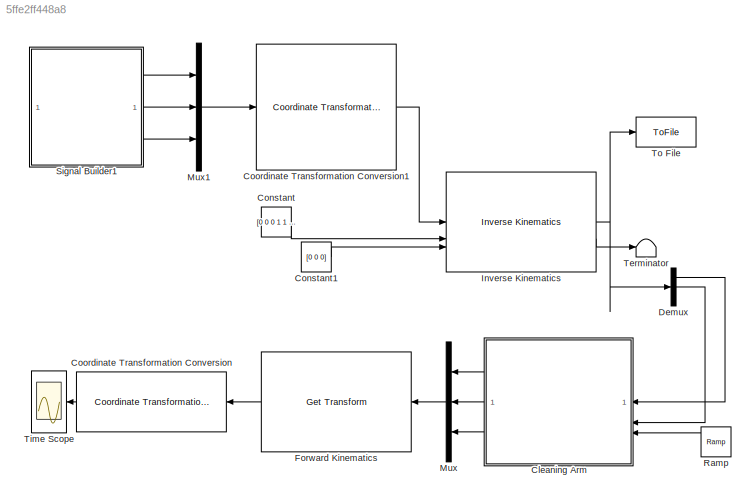
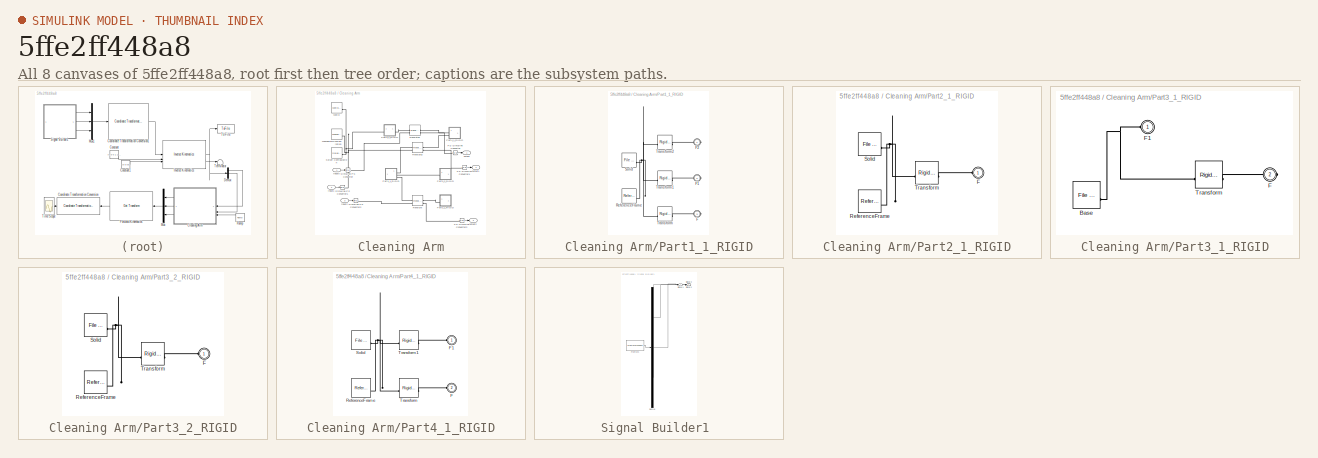
[diagram: thumbnail index - all 8 canvases of the model, root first then tree order]
MODEL slx_5ffe2ff448a8
KIND model
CONFIG AbsTol = auto
CONFIG EnableMultiTasking = off
CONFIG FixedStep = auto
CONFIG MaxStep = auto
CONFIG MinStep = auto
CONFIG RelTol = 1e-3
CONFIG SampleTimeConstraint = Unconstrained
CONFIG SolverName = VariableStepAuto
CONFIG StartTime = 0.0
CONFIG StopTime = 4
WORKSPACE source: external: MATLAB File  (data not in archive)
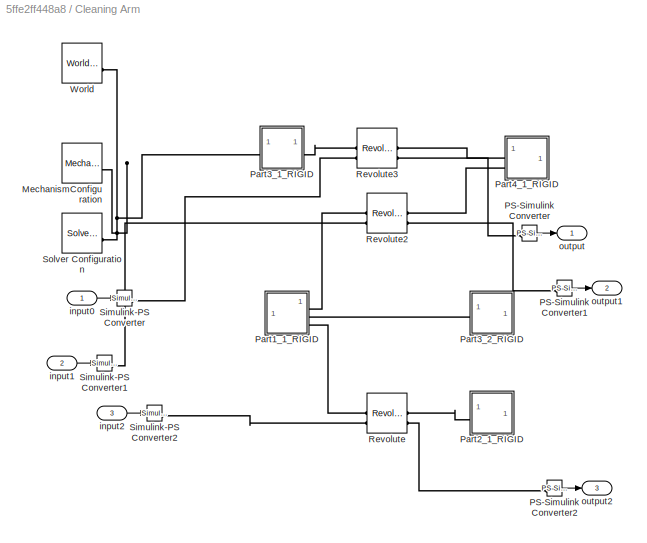
BLOCK [SubSystem] Cleaning Arm
  NameLocation = top
BLOCK [Reference] Cleaning Arm/MechanismConfiguration  REF=sm_lib/Utilities/Mechanism
Configuration
  SourceBlock = sm_lib/Utilities/Mechanism\nConfiguration
  SourceType = Mechanism\nConfiguration
BLOCK [Reference] Cleaning Arm/PS-Simulink Converter  REF=nesl_utility/PS-Simulink
Converter
  SourceBlock = nesl_utility/PS-Simulink\nConverter
  SourceType = PS-Simulink\nConverter
BLOCK [Reference] Cleaning Arm/PS-Simulink Converter1  REF=nesl_utility/PS-Simulink
Converter
  SourceBlock = nesl_utility/PS-Simulink\nConverter
  SourceType = PS-Simulink\nConverter
BLOCK [Reference] Cleaning Arm/PS-Simulink Converter2  REF=nesl_utility/PS-Simulink
Converter
  SourceBlock = nesl_utility/PS-Simulink\nConverter
  SourceType = PS-Simulink\nConverter
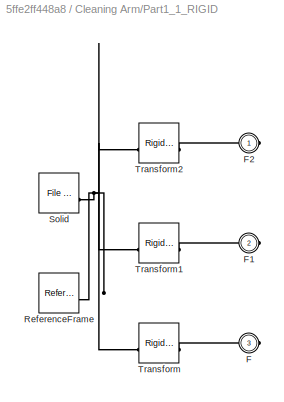
BLOCK [SubSystem] Cleaning Arm/Part1_1_RIGID
BLOCK [PMIOPort] Cleaning Arm/Part1_1_RIGID/F
  Port = 3
  Side = Right
BLOCK [PMIOPort] Cleaning Arm/Part1_1_RIGID/F1
  Port = 2
  Side = Right
BLOCK [PMIOPort] Cleaning Arm/Part1_1_RIGID/F2
  Side = Right
BLOCK [Reference] Cleaning Arm/Part1_1_RIGID/ReferenceFrame  REF=sm_lib/Frames and
Transforms/Reference
Frame
  SourceBlock = sm_lib/Frames and\nTransforms/Reference\nFrame
  SourceType = Reference\nFrame
BLOCK [Reference] Cleaning Arm/Part1_1_RIGID/Solid  REF=sm_lib/Body Elements/File Solid
  SourceBlock = sm_lib/Body Elements/File Solid
  SourceType = File Solid
BLOCK [Reference] Cleaning Arm/Part1_1_RIGID/Transform  REF=sm_lib/Frames and
Transforms/Rigid
Transform
  SourceBlock = sm_lib/Frames and\nTransforms/Rigid\nTransform
  SourceType = Rigid\nTransform
BLOCK [Reference] Cleaning Arm/Part1_1_RIGID/Transform1  REF=sm_lib/Frames and
Transforms/Rigid
Transform
  SourceBlock = sm_lib/Frames and\nTransforms/Rigid\nTransform
  SourceType = Rigid\nTransform
BLOCK [Reference] Cleaning Arm/Part1_1_RIGID/Transform2  REF=sm_lib/Frames and
Transforms/Rigid
Transform
  SourceBlock = sm_lib/Frames and\nTransforms/Rigid\nTransform
  SourceType = Rigid\nTransform
BLOCK [SubSystem] Cleaning Arm/Part2_1_RIGID
BLOCK [PMIOPort] Cleaning Arm/Part2_1_RIGID/F
  Side = Left
BLOCK [Reference] Cleaning Arm/Part2_1_RIGID/ReferenceFrame  REF=sm_lib/Frames and
Transforms/Reference
Frame
  SourceBlock = sm_lib/Frames and\nTransforms/Reference\nFrame
  SourceType = Reference\nFrame
BLOCK [Reference] Cleaning Arm/Part2_1_RIGID/Solid  REF=sm_lib/Body Elements/File Solid
  SourceBlock = sm_lib/Body Elements/File Solid
  SourceType = File Solid
BLOCK [Reference] Cleaning Arm/Part2_1_RIGID/Transform  REF=sm_lib/Frames and
Transforms/Rigid
Transform
  SourceBlock = sm_lib/Frames and\nTransforms/Rigid\nTransform
  SourceType = Rigid\nTransform
BLOCK [SubSystem] Cleaning Arm/Part3_1_RIGID
BLOCK [Reference] Cleaning Arm/Part3_1_RIGID/Base  REF=sm_lib/Body Elements/File Solid
  SourceBlock = sm_lib/Body Elements/File Solid
  SourceType = File Solid
BLOCK [PMIOPort] Cleaning Arm/Part3_1_RIGID/F
  Port = 2
  Side = Right
BLOCK [PMIOPort] Cleaning Arm/Part3_1_RIGID/F1
  Side = Left
BLOCK [Reference] Cleaning Arm/Part3_1_RIGID/Transform  REF=sm_lib/Frames and
Transforms/Rigid
Transform
  SourceBlock = sm_lib/Frames and\nTransforms/Rigid\nTransform
  SourceType = Rigid\nTransform
BLOCK [SubSystem] Cleaning Arm/Part3_2_RIGID
BLOCK [PMIOPort] Cleaning Arm/Part3_2_RIGID/F
  Side = Left
BLOCK [Reference] Cleaning Arm/Part3_2_RIGID/ReferenceFrame  REF=sm_lib/Frames and
Transforms/Reference
Frame
  SourceBlock = sm_lib/Frames and\nTransforms/Reference\nFrame
  SourceType = Reference\nFrame
BLOCK [Reference] Cleaning Arm/Part3_2_RIGID/Solid  REF=sm_lib/Body Elements/File Solid
  SourceBlock = sm_lib/Body Elements/File Solid
  SourceType = File Solid
BLOCK [Reference] Cleaning Arm/Part3_2_RIGID/Transform  REF=sm_lib/Frames and
Transforms/Rigid
Transform
  SourceBlock = sm_lib/Frames and\nTransforms/Rigid\nTransform
  SourceType = Rigid\nTransform
BLOCK [SubSystem] Cleaning Arm/Part4_1_RIGID
BLOCK [PMIOPort] Cleaning Arm/Part4_1_RIGID/F
  Port = 2
  Side = Left
BLOCK [PMIOPort] Cleaning Arm/Part4_1_RIGID/F1
  Side = Left
BLOCK [Reference] Cleaning Arm/Part4_1_RIGID/ReferenceFrame  REF=sm_lib/Frames and
Transforms/Reference
Frame
  SourceBlock = sm_lib/Frames and\nTransforms/Reference\nFrame
  SourceType = Reference\nFrame
BLOCK [Reference] Cleaning Arm/Part4_1_RIGID/Solid  REF=sm_lib/Body Elements/File Solid
  SourceBlock = sm_lib/Body Elements/File Solid
  SourceType = File Solid
BLOCK [Reference] Cleaning Arm/Part4_1_RIGID/Transform  REF=sm_lib/Frames and
Transforms/Rigid
Transform
  SourceBlock = sm_lib/Frames and\nTransforms/Rigid\nTransform
  SourceType = Rigid\nTransform
BLOCK [Reference] Cleaning Arm/Part4_1_RIGID/Transform1  REF=sm_lib/Frames and
Transforms/Rigid
Transform
  SourceBlock = sm_lib/Frames and\nTransforms/Rigid\nTransform
  SourceType = Rigid\nTransform
BLOCK [Reference] Cleaning Arm/Revolute  REF=sm_lib/Joints/Revolute Joint
  SourceBlock = sm_lib/Joints/Revolute Joint
  SourceType = Revolute Joint
BLOCK [Reference] Cleaning Arm/Revolute2  REF=sm_lib/Joints/Revolute Joint
  SourceBlock = sm_lib/Joints/Revolute Joint
  SourceType = Revolute Joint
BLOCK [Reference] Cleaning Arm/Revolute3  REF=sm_lib/Joints/Revolute Joint
  SourceBlock = sm_lib/Joints/Revolute Joint
  SourceType = Revolute Joint
BLOCK [Reference] Cleaning Arm/Simulink-PS Converter  REF=nesl_utility/Simulink-PS
Converter
  SourceBlock = nesl_utility/Simulink-PS\nConverter
  SourceType = Simulink-PS\nConverter
BLOCK [Reference] Cleaning Arm/Simulink-PS Converter1  REF=nesl_utility/Simulink-PS
Converter
  SourceBlock = nesl_utility/Simulink-PS\nConverter
  SourceType = Simulink-PS\nConverter
BLOCK [Reference] Cleaning Arm/Simulink-PS Converter2  REF=nesl_utility/Simulink-PS
Converter
  SourceBlock = nesl_utility/Simulink-PS\nConverter
  SourceType = Simulink-PS\nConverter
BLOCK [Reference] Cleaning Arm/Solver Configuration  REF=nesl_utility/Solver
Configuration
  SourceBlock = nesl_utility/Solver\nConfiguration
  SourceType = Solver\nConfiguration
BLOCK [Reference] Cleaning Arm/World  REF=sm_lib/Frames and
Transforms/World Frame
  SourceBlock = sm_lib/Frames and\nTransforms/World Frame
  SourceType = World Frame
BLOCK [Inport] Cleaning Arm/input0
BLOCK [Inport] Cleaning Arm/input1
  Port = 2
BLOCK [Inport] Cleaning Arm/input2
  Port = 3
BLOCK [Outport] Cleaning Arm/output
BLOCK [Outport] Cleaning Arm/output1
  Port = 2
BLOCK [Outport] Cleaning Arm/output2
  Port = 3
BLOCK [Constant] Constant 
  Value = [0 0 0 1 1 1]
BLOCK [Constant] Constant1 
  Value = [0 0 0]
BLOCK [Reference] Coordinate Transformation Conversion   REF=robotcorelib/Coordinate Transformation Conversion
  LibrarySourceBlock = navlib/Utilities/Coordinate Transformation Conversion
  NameLocation = top
  SourceBlock = robotcorelib/Coordinate Transformation Conversion
  SourceType = robotics.slcore.internal.block.CoordinateTransformationConversion
BLOCK [Reference] Coordinate Transformation Conversion1   REF=robotcorelib/Coordinate Transformation Conversion
  LibrarySourceBlock = navlib/Utilities/Coordinate Transformation Conversion
  SourceBlock = robotcorelib/Coordinate Transformation Conversion
  SourceType = robotics.slcore.internal.block.CoordinateTransformationConversion
BLOCK [Demux] Demux
  Outputs = 3
BLOCK [Reference] Forward Kinematics   REF=robotmaniplib/Get Transform
  NameLocation = top
  SourceBlock = robotmaniplib/Get Transform
  SourceType = Get Transform
BLOCK [Reference] Inverse Kinematics   REF=robotmaniplib/Inverse Kinematics
  SourceBlock = robotmaniplib/Inverse Kinematics
  SourceType = Inverse Kinematics
BLOCK [Mux] Mux
  DisplayOption = bar
  Inputs = 3
  NameLocation = top
BLOCK [Mux] Mux1
  DisplayOption = bar
  Inputs = 3
BLOCK [Reference] Ramp   REF=simulink/Sources/Ramp
  NameLocation = top
  SourceBlock = simulink/Sources/Ramp
  SourceType = Ramp
BLOCK [SubSystem] Signal Builder1 
  ClipboardFcn = sigbuilder_block('clipboard');
  CloseFcn = sigbuilder_block('close');
  ContinueFcn = sigbuilder_block('continue');
  CopyFcn = sigbuilder_block('copy');
  DeleteFcn = sigbuilder_block('delete');
  LoadFcn = sigbuilder_block('load');
  MaskHideContents = on
  ModelCloseFcn = sigbuilder_block('modelClose');
  NameChangeFcn = sigbuilder_block('namechange');
  OpenFcn = sigbuilder_block('open',[397.2 66 550.8 400.2 ]);
  PauseFcn = sigbuilder_block('pause');
  PreSaveFcn = sigbuilder_block('preSave');
  StartFcn = sigbuilder_block('start');
  StopFcn = sigbuilder_block('stop');
  Tag = STV Subsys
BLOCK [Demux] Signal Builder1 /Demux
  DisplayOption = none
  Outputs = 3
  Tag = STV Demux
BLOCK [FromWorkspace] Signal Builder1 /FromWs
  Tag = STV FromWs
  VariableName = tuvar
BLOCK [Outport] Signal Builder1 /Signal 1
  Tag = STV Outport
BLOCK [Outport] Signal Builder1 /Signal 2
  Port = 2
  Tag = STV Outport
BLOCK [Outport] Signal Builder1 /Signal 3
  Port = 3
  Tag = STV Outport
BLOCK [Terminator] Terminator
BLOCK [Scope] Time Scope
  DefaultConfigurationName = spbscopes.TimeScopeBlockCfg
  Floating = off
  NameLocation = top
  NumInputPorts = 1
  ScopeSpecificationString = spbscopes.TimeScopeBlockCfg('CurrentConfiguration', extmgr.ConfigurationSet(extmgr.Configuration('Core','General UI',true,'FigureColor',[0.156862745098039 0.156862745098039 0.156862745098039]),extmgr.Configuration('Core','Source UI',true),extmgr.Configuration('Sources','WiredSimulink',true),extmgr.Configuration('Visuals','Time Domain',true,'DisplayLayoutDimensions',[3 1],'DisplayPropertyDefaults',...<+2735ch>
  UserDataPersistent = on
BLOCK [ToFile] To File 
  Filename = A.mat
  SaveFormat = Timeseries
LINE Cleaning Arm/PS-Simulink Converter1:1 -> Cleaning Arm/output1:1
LINE Cleaning Arm/PS-Simulink Converter2:1 -> Cleaning Arm/output2:1
LINE Cleaning Arm/PS-Simulink Converter:1 -> Cleaning Arm/output:1
LINE Cleaning Arm/input0:1 -> Cleaning Arm/Simulink-PS Converter:1
LINE Cleaning Arm/input1:1 -> Cleaning Arm/Simulink-PS Converter1:1
LINE Cleaning Arm/input2:1 -> Cleaning Arm/Simulink-PS Converter2:1
LINE Cleaning Arm:1 -> Mux:1
LINE Cleaning Arm:2 -> Mux:2
LINE Cleaning Arm:3 -> Mux:3
LINE Constant :1 -> Inverse Kinematics :2
LINE Constant1 :1 -> Inverse Kinematics :3
LINE Coordinate Transformation Conversion :1 -> Time Scope:1
LINE Coordinate Transformation Conversion1 :1 -> Inverse Kinematics :1
LINE Demux:1 -> Cleaning Arm:1
LINE Demux:2 -> Cleaning Arm:2
LINE Forward Kinematics :1 -> Coordinate Transformation Conversion :1
NET Inverse Kinematics :1 -> Demux:1, To File :1
LINE Inverse Kinematics :2 -> Terminator:1
LINE Mux1:1 -> Coordinate Transformation Conversion1 :1
LINE Mux:1 -> Forward Kinematics :1
LINE Ramp :1 -> Cleaning Arm:3
LINE Signal Builder1 :1 -> Mux1:1
LINE Signal Builder1 :2 -> Mux1:2
LINE Signal Builder1 :3 -> Mux1:3
PNET net1: Cleaning Arm/MechanismConfiguration:RConn1 -- Cleaning Arm/Part3_1_RIGID:LConn1 -- Cleaning Arm/Solver Configuration:RConn1 -- Cleaning Arm/World:RConn1
PLINE Cleaning Arm/PS-Simulink Converter1:LConn1 -- Cleaning Arm/Revolute2:RConn2
PLINE Cleaning Arm/PS-Simulink Converter2:LConn1 -- Cleaning Arm/Revolute:RConn2
PLINE Cleaning Arm/PS-Simulink Converter:LConn1 -- Cleaning Arm/Revolute3:RConn2
PLINE Cleaning Arm/Part1_1_RIGID/F1:RConn1 -- Cleaning Arm/Part1_1_RIGID/Transform1:RConn1
PLINE Cleaning Arm/Part1_1_RIGID/F2:RConn1 -- Cleaning Arm/Part1_1_RIGID/Transform2:RConn1
PLINE Cleaning Arm/Part1_1_RIGID/F:RConn1 -- Cleaning Arm/Part1_1_RIGID/Transform:RConn1
PNET net2: Cleaning Arm/Part1_1_RIGID/ReferenceFrame:RConn1 -- Cleaning Arm/Part1_1_RIGID/Solid:RConn1 -- Cleaning Arm/Part1_1_RIGID/Transform1:LConn1 -- Cleaning Arm/Part1_1_RIGID/Transform2:LConn1 -- Cleaning Arm/Part1_1_RIGID/Transform:LConn1
PLINE Cleaning Arm/Part1_1_RIGID:RConn1 -- Cleaning Arm/Revolute2:LConn1
PLINE Cleaning Arm/Part1_1_RIGID:RConn2 -- Cleaning Arm/Part3_2_RIGID:LConn1
PLINE Cleaning Arm/Part1_1_RIGID:RConn3 -- Cleaning Arm/Revolute:LConn1
PLINE Cleaning Arm/Part2_1_RIGID/F:RConn1 -- Cleaning Arm/Part2_1_RIGID/Transform:RConn1
PNET net3: Cleaning Arm/Part2_1_RIGID/ReferenceFrame:RConn1 -- Cleaning Arm/Part2_1_RIGID/Solid:RConn1 -- Cleaning Arm/Part2_1_RIGID/Transform:LConn1
PLINE Cleaning Arm/Part2_1_RIGID:LConn1 -- Cleaning Arm/Revolute:RConn1
PNET net4: Cleaning Arm/Part3_1_RIGID/Base:RConn1 -- Cleaning Arm/Part3_1_RIGID/F1:RConn1 -- Cleaning Arm/Part3_1_RIGID/Transform:LConn1
PLINE Cleaning Arm/Part3_1_RIGID/F:RConn1 -- Cleaning Arm/Part3_1_RIGID/Transform:RConn1
PLINE Cleaning Arm/Part3_1_RIGID:RConn1 -- Cleaning Arm/Revolute3:LConn1
PLINE Cleaning Arm/Part3_2_RIGID/F:RConn1 -- Cleaning Arm/Part3_2_RIGID/Transform:RConn1
PNET net5: Cleaning Arm/Part3_2_RIGID/ReferenceFrame:RConn1 -- Cleaning Arm/Part3_2_RIGID/Solid:RConn1 -- Cleaning Arm/Part3_2_RIGID/Transform:LConn1
PLINE Cleaning Arm/Part4_1_RIGID/F1:RConn1 -- Cleaning Arm/Part4_1_RIGID/Transform1:RConn1
PLINE Cleaning Arm/Part4_1_RIGID/F:RConn1 -- Cleaning Arm/Part4_1_RIGID/Transform:RConn1
PNET net6: Cleaning Arm/Part4_1_RIGID/ReferenceFrame:RConn1 -- Cleaning Arm/Part4_1_RIGID/Solid:RConn1 -- Cleaning Arm/Part4_1_RIGID/Transform1:LConn1 -- Cleaning Arm/Part4_1_RIGID/Transform:LConn1
PLINE Cleaning Arm/Part4_1_RIGID:LConn1 -- Cleaning Arm/Revolute3:RConn1
PLINE Cleaning Arm/Part4_1_RIGID:LConn2 -- Cleaning Arm/Revolute2:RConn1
PLINE Cleaning Arm/Revolute2:LConn2 -- Cleaning Arm/Simulink-PS Converter1:RConn1
PLINE Cleaning Arm/Revolute3:LConn2 -- Cleaning Arm/Simulink-PS Converter:RConn1
PLINE Cleaning Arm/Revolute:LConn2 -- Cleaning Arm/Simulink-PS Converter2:RConn1
note: NET lines group one-source signal fan-out (src -> all destinations, sorted); 1:1 wires keep LINE; PNET lines group multi-terminal physical nets as a canonical sorted terminal list (undirected conserving connections); 2-terminal nets keep the pairwise PLINE form
